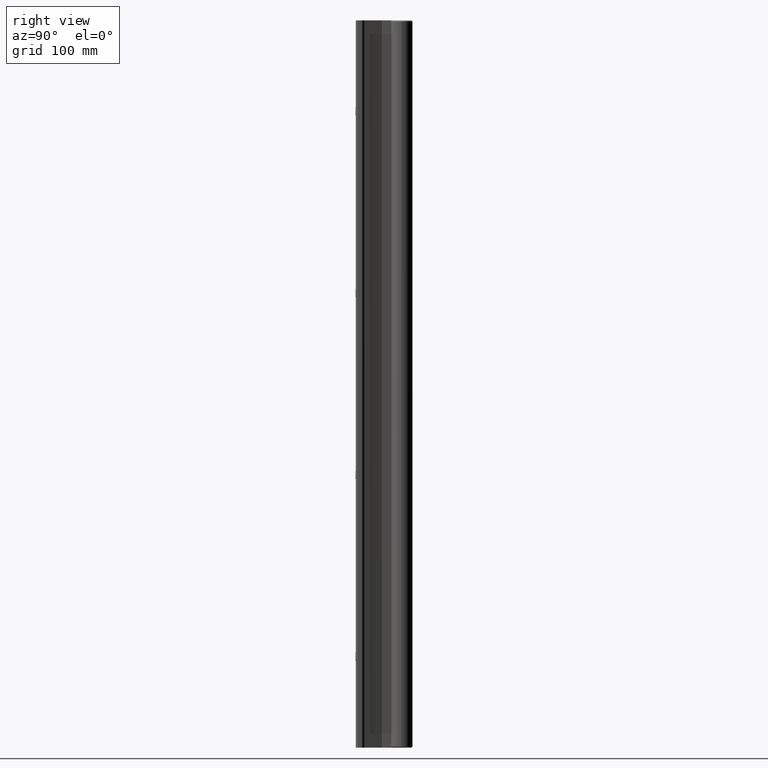
[diagram: clean part render]
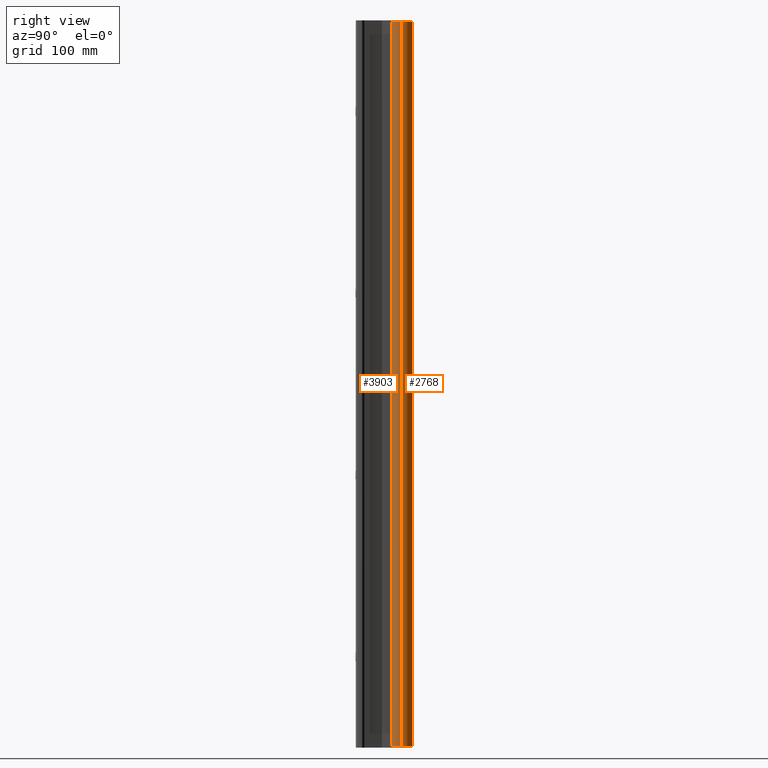
[diagram: same view with one multi-face feature highlighted, each face labeled with its STEP entity id]
A machine part, right view. The highlighted faces form ONE feature: a constant-radius fillet chain: 2 tangent blend faces with common blend radius 9.525 mm. The faces share edges in the B-rep.
Their STEP definitions:
[1] entity #2768 (Cylinder):
#113 = CIRCLE ( 'NONE', #6071, 0.3749999999999999445 ) ;
#130 = VERTEX_POINT ( 'NONE', #1944 ) ;
#192 = EDGE_CURVE ( 'NONE', #4216, #4738, #113, .T. ) ;
#267 = DIRECTION ( 'NONE',  ( 1.000000000000000000, 0.0000000000000000000, 0.0000000000000000000 ) ) ;
#518 = ORIENTED_EDGE ( 'NONE', *, *, #192, .T. ) ;
#651 = AXIS2_PLACEMENT_3D ( 'NONE', #4092, #2659, #1156 ) ;
#703 = VERTEX_POINT ( 'NONE', #5441 ) ;
#920 = EDGE_LOOP ( 'NONE', ( #3879, #5668, #518, #2499 ) ) ;
#1156 = DIRECTION ( 'NONE',  ( 1.000000000000000000, 0.0000000000000000000, 0.0000000000000000000 ) ) ;
#1312 = CARTESIAN_POINT ( 'NONE',  ( 0.3749999999999999445, 1.499999999999999778, -0.03124999999999710648 ) ) ;
#1511 = DIRECTION ( 'NONE',  ( 0.0000000000000000000, 0.0000000000000000000, 1.000000000000000000 ) ) ;
#1524 = DIRECTION ( 'NONE',  ( 0.0000000000000000000, 0.0000000000000000000, -1.000000000000000000 ) ) ;
#1773 = DIRECTION ( 'NONE',  ( 0.0000000000000000000, 0.0000000000000000000, 1.000000000000000000 ) ) ;
#1850 = LINE ( 'NONE', #2195, #6093 ) ;
#1944 = CARTESIAN_POINT ( 'NONE',  ( 0.3749999999999999445, 1.499999999999999778, -23.96875000000000000 ) ) ;
#1952 = AXIS2_PLACEMENT_3D ( 'NONE', #5160, #1773, #267 ) ;
#2195 = CARTESIAN_POINT ( 'NONE',  ( -0.3749999999999999445, 1.499999999999999778, -23.99999999999999645 ) ) ;
#2369 = EDGE_CURVE ( 'NONE', #130, #4738, #4299, .T. ) ;
#2499 = ORIENTED_EDGE ( 'NONE', *, *, #2369, .F. ) ;
#2554 = DIRECTION ( 'NONE',  ( 1.000000000000000000, 0.0000000000000000000, 0.0000000000000000000 ) ) ;
#2659 = DIRECTION ( 'NONE',  ( -0.0000000000000000000, -0.0000000000000000000, 1.000000000000000000 ) ) ;
#2768 = ADVANCED_FACE ( 'NONE', ( #2813 ), #4952, .T. ) ;
#2813 = FACE_OUTER_BOUND ( 'NONE', #920, .T. ) ;
#3210 = DIRECTION ( 'NONE',  ( 0.0000000000000000000, 0.0000000000000000000, 1.000000000000000000 ) ) ;
#3827 = VECTOR ( 'NONE', #1511, 39.37007874015748143 ) ;
#3879 = ORIENTED_EDGE ( 'NONE', *, *, #5931, .T. ) ;
#3931 = CARTESIAN_POINT ( 'NONE',  ( 0.0000000000000000000, 1.499999999999999778, -0.03124999999999710648 ) ) ;
#4092 = CARTESIAN_POINT ( 'NONE',  ( 0.0000000000000000000, 1.499999999999999778, -23.96875000000000000 ) ) ;
#4216 = VERTEX_POINT ( 'NONE', #4594 ) ;
#4299 = LINE ( 'NONE', #4401, #3827 ) ;
#4401 = CARTESIAN_POINT ( 'NONE',  ( 0.3749999999999999445, 1.499999999999999778, -23.99999999999999645 ) ) ;
#4594 = CARTESIAN_POINT ( 'NONE',  ( -0.3749999999999999445, 1.499999999999999778, -0.03124999999999710648 ) ) ;
#4738 = VERTEX_POINT ( 'NONE', #1312 ) ;
#4779 = CIRCLE ( 'NONE', #651, 0.3749999999999999445 ) ;
#4952 = CYLINDRICAL_SURFACE ( 'NONE', #1952, 0.3749999999999999445 ) ;
#5160 = CARTESIAN_POINT ( 'NONE',  ( 0.0000000000000000000, 1.499999999999999778, -23.99999999999999645 ) ) ;
#5354 = EDGE_CURVE ( 'NONE', #703, #4216, #1850, .T. ) ;
#5441 = CARTESIAN_POINT ( 'NONE',  ( -0.3749999999999999445, 1.499999999999999778, -23.96875000000000000 ) ) ;
#5668 = ORIENTED_EDGE ( 'NONE', *, *, #5354, .T. ) ;
#5931 = EDGE_CURVE ( 'NONE', #130, #703, #4779, .T. ) ;
#6071 = AXIS2_PLACEMENT_3D ( 'NONE', #3931, #1524, #2554 ) ;
#6093 = VECTOR ( 'NONE', #3210, 39.37007874015748143 ) ;
[2] entity #3903 (Cylinder):
#17 = CARTESIAN_POINT ( 'NONE',  ( -0.008199185978417126291, 1.124999999999999778, -20.87500000000000000 ) ) ;
#39 = CARTESIAN_POINT ( 'NONE',  ( -0.05552849340515757237, 1.129056354555276975, -20.88771445111031255 ) ) ;
#62 = DIRECTION ( 'NONE',  ( -0.0000000000000000000, -0.0000000000000000000, 1.000000000000000000 ) ) ;
#93 = CARTESIAN_POINT ( 'NONE',  ( -0.1185237875825029819, 1.144208060990028475, -21.04053697796969402 ) ) ;
#107 = CARTESIAN_POINT ( 'NONE',  ( -0.04052925131259992736, 1.127118722568794640, -9.118530216658257359 ) ) ;
#115 = CARTESIAN_POINT ( 'NONE',  ( -0.04052925131259926816, 1.127118722568794418, -21.11853021665825736 ) ) ;
#118 = CARTESIAN_POINT ( 'NONE',  ( 0.07629384564802829671, 1.132778678738117328, -9.099349498394039060 ) ) ;
#130 = VERTEX_POINT ( 'NONE', #1944 ) ;
#133 = CARTESIAN_POINT ( 'NONE',  ( -0.1209544131638265879, 1.145038121379762908, -8.967407062744349844 ) ) ;
#161 = CARTESIAN_POINT ( 'NONE',  ( -0.01649604049918379153, 1.125276581205358672, -9.124177072946856981 ) ) ;
#199 = CARTESIAN_POINT ( 'NONE',  ( -0.07635022463610424692, 1.132790423690561044, -8.900693733610289371 ) ) ;
#222 = CARTESIAN_POINT ( 'NONE',  ( -0.08260014785982905394, 1.134162219015206530, -8.905827788982144000 ) ) ;
#252 = CARTESIAN_POINT ( 'NONE',  ( 0.07637577337513082321, 1.132795830430083139, -2.900713745801356769 ) ) ;
#281 = CARTESIAN_POINT ( 'NONE',  ( 0.1083932797339005188, 1.140975780241187065, -21.06279253465905299 ) ) ;
#296 = CARTESIAN_POINT ( 'NONE',  ( -0.1249959074323481467, 1.146445162465756340, -3.008282252000103796 ) ) ;
#301 = CARTESIAN_POINT ( 'NONE',  ( 0.1209654137732490975, 1.145041858245552602, -21.03256067885499547 ) ) ;
#307 = CARTESIAN_POINT ( 'NONE',  ( -0.1209544131638268516, 1.145038121379763352, -14.96740706274434629 ) ) ;
#314 = CARTESIAN_POINT ( 'NONE',  ( -0.09933638728234459037, 1.138365720413012427, -2.923690985503739181 ) ) ;
#320 = CARTESIAN_POINT ( 'NONE',  ( 0.008321157592743298054, 1.124999999999999778, -21.12499999999999645 ) ) ;
#326 = CARTESIAN_POINT ( 'NONE',  ( -0.05564380897423314154, 1.129073007461675049, -15.11223100728342317 ) ) ;
#331 = CARTESIAN_POINT ( 'NONE',  ( -0.05564380897423287786, 1.129073007461675049, -3.112231007283425388 ) ) ;
#355 = CARTESIAN_POINT ( 'NONE',  ( -0.008323276755297724649, 1.124999999999999778, -3.124999999999999112 ) ) ;
#368 = CARTESIAN_POINT ( 'NONE',  ( -0.08270888014692263923, 1.134187380241394205, -15.09407290499850696 ) ) ;
#404 = CARTESIAN_POINT ( 'NONE',  ( 6.354236240045021498E-17, 1.124999999999999778, -3.124999999999999556 ) ) ;
#421 = CARTESIAN_POINT ( 'NONE',  ( 0.04052490638182626448, 1.127118274301449841, -3.118531605065489209 ) ) ;
#457 = EDGE_LOOP ( 'NONE', ( #462, #3177 ) ) ;
#462 = ORIENTED_EDGE ( 'NONE', *, *, #3356, .T. ) ;
#470 = CARTESIAN_POINT ( 'NONE',  ( 0.03266774632321109428, 1.126337263159386426, -14.87906118326279525 ) ) ;
#486 = CARTESIAN_POINT ( 'NONE',  ( 0.07629384564802833835, 1.132778678738117328, -15.09934949839404261 ) ) ;
#509 = CARTESIAN_POINT ( 'NONE',  ( -0.1249959074323481328, 1.146445162465756340, -21.00828225200010024 ) ) ;
#511 = CARTESIAN_POINT ( 'NONE',  ( 0.1185730390998946948, 1.144224147783138745, -14.95958850644446692 ) ) ;
#536 = CARTESIAN_POINT ( 'NONE',  ( 0.08263376477293288280, 1.134169548060881549, -14.90585498830494160 ) ) ;
#537 = CARTESIAN_POINT ( 'NONE',  ( 0.03255240335413719238, 1.126328932588529730, -9.120964333197060014 ) ) ;
#562 = CARTESIAN_POINT ( 'NONE',  ( -0.1122437319770848707, 1.142176852049964220, -20.94437454415956523 ) ) ;
#564 = CARTESIAN_POINT ( 'NONE',  ( 0.01649640680358238978, 1.125276643179092817, -9.124176879621410663 ) ) ;
#586 = CARTESIAN_POINT ( 'NONE',  ( 0.04052490638182602856, 1.127118274301449841, -9.118531605065490098 ) ) ;
#609 = CARTESIAN_POINT ( 'NONE',  ( -0.1250040618164579287, 1.146448045475507937, -20.99184174636232214 ) ) ;
#694 = CARTESIAN_POINT ( 'NONE',  ( -0.05552849340515732951, 1.129056354555276975, -8.887714451110316105 ) ) ;
#703 = VERTEX_POINT ( 'NONE', #5441 ) ;
#719 = CARTESIAN_POINT ( 'NONE',  ( 0.008197098410217915077, 1.125000000000000222, -8.874999999999998224 ) ) ;
#733 = CARTESIAN_POINT ( 'NONE',  ( 2.097213048189285219E-15, 1.124999999999999778, -8.874999999999998224 ) ) ;
#741 = CARTESIAN_POINT ( 'NONE',  ( 0.1185730390998943201, 1.144224147783138745, -2.959588506444464251 ) ) ;
#757 = CARTESIAN_POINT ( 'NONE',  ( 0.1250009802955068805, 1.146446955993523309, -20.99177801048903902 ) ) ;
#773 = CARTESIAN_POINT ( 'NONE',  ( 2.097213048189285219E-15, 1.124999999999999778, -8.874999999999998224 ) ) ;
#792 = CARTESIAN_POINT ( 'NONE',  ( -0.1185723957054426320, 1.144223880012038119, -2.959584239679654782 ) ) ;
#794 = CARTESIAN_POINT ( 'NONE',  ( 0.08267656770183443027, 1.134179936560775648, -21.09410215216271212 ) ) ;
#798 = CARTESIAN_POINT ( 'NONE',  ( 0.03266774632321121918, 1.126337263159386426, -2.879061183262796586 ) ) ;
#808 = CARTESIAN_POINT ( 'NONE',  ( -0.08260014785982948415, 1.134162219015206974, -2.905827788982146664 ) ) ;
#822 = CARTESIAN_POINT ( 'NONE',  ( -0.03255629333503190503, 1.126329225507829879, -15.12096343481433536 ) ) ;
#842 = CARTESIAN_POINT ( 'NONE',  ( -0.09411010042740793058, 1.136952681569073809, -14.91732909367860849 ) ) ;
#871 = CARTESIAN_POINT ( 'NONE',  ( 0.05563716654445831356, 1.129072035165736176, -3.112234197709794259 ) ) ;
#913 = CARTESIAN_POINT ( 'NONE',  ( 0.008321157592743225195, 1.124999999999999778, -3.125000000000000888 ) ) ;
#945 = VERTEX_POINT ( 'NONE', #2356 ) ;
#972 = CARTESIAN_POINT ( 'NONE',  ( 0.05556862442868314850, 1.129062064057325454, -14.88773311215387807 ) ) ;
#991 = CARTESIAN_POINT ( 'NONE',  ( 0.06287984198914917111, 1.130245640486009728, -14.89166189727124490 ) ) ;
#1009 = CARTESIAN_POINT ( 'NONE',  ( -0.03267150337677446337, 1.126337925261777784, -20.87906325004080088 ) ) ;
#1034 = CYLINDRICAL_SURFACE ( 'NONE', #4335, 0.3749999999999999445 ) ;
#1065 = CARTESIAN_POINT ( 'NONE',  ( -0.05564380897423196193, 1.129073007461675049, -21.11223100728342317 ) ) ;
#1067 = CARTESIAN_POINT ( 'NONE',  ( 0.008321157592743280706, 1.124999999999999778, -9.125000000000000000 ) ) ;
#1074 = CARTESIAN_POINT ( 'NONE',  ( 6.264928769732560272E-17, 1.124999999999999778, -15.12499999999999822 ) ) ;
#1079 = CARTESIAN_POINT ( 'NONE',  ( -0.09986561048412578856, 1.138350464728789202, -9.076900852288481758 ) ) ;
#1088 = CARTESIAN_POINT ( 'NONE',  ( -0.1083646537625423956, 1.140967728712819262, -20.93716780008130485 ) ) ;
#1127 = CARTESIAN_POINT ( 'NONE',  ( -0.07634699348806610331, 1.132789384939130839, -9.099310559574416146 ) ) ;
#1192 = CARTESIAN_POINT ( 'NONE',  ( 0.1185730390998943617, 1.144224147783138745, -8.959588506444465139 ) ) ;
#1199 = EDGE_CURVE ( 'NONE', #3712, #3309, #5207, .T. ) ;
#1216 = CARTESIAN_POINT ( 'NONE',  ( 0.08263376477293436773, 1.134169548060882216, -20.90585498830494515 ) ) ;
#1219 = CARTESIAN_POINT ( 'NONE',  ( 0.1241678343262123674, 1.146149400175753064, -2.983438654594587014 ) ) ;
#1233 = CARTESIAN_POINT ( 'NONE',  ( 0.09927870683307976618, 1.138349295819228946, -21.07639204061896976 ) ) ;
#1244 = CARTESIAN_POINT ( 'NONE',  ( -0.03255629333503186340, 1.126329225507829657, -3.120963434814338022 ) ) ;
#1248 = CARTESIAN_POINT ( 'NONE',  ( 0.09413140612909383365, 1.136958663453052853, -21.08264325906429804 ) ) ;
#1252 = CARTESIAN_POINT ( 'NONE',  ( 0.008197098410217954975, 1.125000000000000222, -2.874999999999999112 ) ) ;
#1267 = CARTESIAN_POINT ( 'NONE',  ( -0.09986561048412598285, 1.138350464728788758, -3.076900852288477761 ) ) ;
#1282 = CARTESIAN_POINT ( 'NONE',  ( -0.1241888673462582526, 1.146156742583905874, -15.01643345193981638 ) ) ;
#1288 = CARTESIAN_POINT ( 'NONE',  ( -0.07635022463610419141, 1.132790423690561266, -2.900693733610288483 ) ) ;
#1290 = CARTESIAN_POINT ( 'NONE',  ( 0.04052490638182691673, 1.127118274301450285, -21.11853160506548832 ) ) ;
#1297 = CARTESIAN_POINT ( 'NONE',  ( -0.008199185978417187007, 1.124999999999999778, -14.87500000000000178 ) ) ;
#1311 = CARTESIAN_POINT ( 'NONE',  ( 0.06278460617192940796, 1.130229337425312064, -3.108393574268719206 ) ) ;
#1312 = CARTESIAN_POINT ( 'NONE',  ( 0.3749999999999999445, 1.499999999999999778, -0.03124999999999710648 ) ) ;
#1330 = CARTESIAN_POINT ( 'NONE',  ( 6.354236240045021498E-17, 1.124999999999999778, -3.124999999999999556 ) ) ;
#1343 = EDGE_CURVE ( 'NONE', #3309, #3712, #5247, .T. ) ;
#1373 = CARTESIAN_POINT ( 'NONE',  ( 0.1122679117759137896, 1.142184748809113692, -3.055563895318961443 ) ) ;
#1409 = CARTESIAN_POINT ( 'NONE',  ( 0.09927870683307861432, 1.138349295819229168, -9.076392040618980417 ) ) ;
#1413 = DIRECTION ( 'NONE',  ( 0.0000000000000000000, 0.0000000000000000000, 1.000000000000000000 ) ) ;
#1461 = CARTESIAN_POINT ( 'NONE',  ( 0.04048540440161966375, 1.127114285105013103, -14.88145609185627194 ) ) ;
#1485 = CARTESIAN_POINT ( 'NONE',  ( 0.1249990179307815114, 1.146446262192827081, -15.00825176967056862 ) ) ;
#1511 = DIRECTION ( 'NONE',  ( 0.0000000000000000000, 0.0000000000000000000, 1.000000000000000000 ) ) ;
#1572 = CARTESIAN_POINT ( 'NONE',  ( -0.1250040618164579009, 1.146448045475507271, -8.991841746362331023 ) ) ;
#1615 = CARTESIAN_POINT ( 'NONE',  ( -0.1241761983711994755, 1.146152325010479034, -8.983491172639070044 ) ) ;
#1620 = CARTESIAN_POINT ( 'NONE',  ( 0.08263376477293328526, 1.134169548060881993, -8.905854988304941600 ) ) ;
#1693 = ORIENTED_EDGE ( 'NONE', *, *, #1918, .T. ) ;
#1755 = CARTESIAN_POINT ( 'NONE',  ( 0.06278460617193117044, 1.130229337425312286, -21.10839357426871032 ) ) ;
#1784 = CARTESIAN_POINT ( 'NONE',  ( -0.04047420807541089738, 1.127113368225226564, -2.881453399247499991 ) ) ;
#1796 = CARTESIAN_POINT ( 'NONE',  ( -0.1250040618164579287, 1.146448045475507715, -14.99184174636233458 ) ) ;
#1830 = ORIENTED_EDGE ( 'NONE', *, *, #1199, .T. ) ;
#1834 = CARTESIAN_POINT ( 'NONE',  ( -0.09986561048412580244, 1.138350464728788980, -15.07690085228847465 ) ) ;
#1850 = LINE ( 'NONE', #2195, #6093 ) ;
#1866 = CARTESIAN_POINT ( 'NONE',  ( 0.1083932797338998250, 1.140975780241186843, -3.062792534659057875 ) ) ;
#1892 = CARTESIAN_POINT ( 'NONE',  ( 0.01645178346242884629, 1.125272950837598707, -14.87581176438752983 ) ) ;
#1893 = ORIENTED_EDGE ( 'NONE', *, *, #1343, .T. ) ;
#1918 = EDGE_CURVE ( 'NONE', #2142, #4277, #2785, .T. ) ;
#1941 = DIRECTION ( 'NONE',  ( 0.0000000000000000000, 0.0000000000000000000, -1.000000000000000000 ) ) ;
#1944 = CARTESIAN_POINT ( 'NONE',  ( 0.3749999999999999445, 1.499999999999999778, -23.96875000000000000 ) ) ;
#1947 = B_SPLINE_CURVE_WITH_KNOTS ( 'NONE', 3,
 ( #2294, #355, #5154, #1244, #5655, #331, #4675, #2729, #2782, #1267, #4694, #5714, #3217, #2747, #296, #4225, #2253, #3699, #792, #6188, #3234, #314, #3725, #808, #1288, #4243, #4717, #1784, #6226, #5205, #2281, #6208 ),
 .UNSPECIFIED., .F., .F.,
 ( 4, 2, 2, 2, 2, 2, 2, 2, 2, 2, 2, 2, 2, 2, 2, 4 ),
 ( 1.566876027423624901E-18, 0.0006249108828500791806, 0.001249821765700156843, 0.001874732648550234398, 0.002499643531400312386, 0.003749465297100469229, 0.004374376179950528569, 0.004999287062800588342, 0.005624197945650648983, 0.006249108828500708757, 0.006874019711350768530, 0.007498930594200827436, 0.008123841477050888077, 0.008748752359900947850, 0.009373663242751009358, 0.009998574125601069132 ),
 .UNSPECIFIED. ) ;
#1961 = CARTESIAN_POINT ( 'NONE',  ( 0.04052490638182574406, 1.127118274301449619, -15.11853160506549187 ) ) ;
#1983 = CARTESIAN_POINT ( 'NONE',  ( -0.01649604049918402399, 1.125276581205358672, -21.12417707294684988 ) ) ;
#1985 = CARTESIAN_POINT ( 'NONE',  ( 0.01649640680358280959, 1.125276643179093039, -15.12417687962141599 ) ) ;
#2006 = CARTESIAN_POINT ( 'NONE',  ( -0.1241761983711991701, 1.146152325010478812, -20.98349117263906294 ) ) ;
#2007 = CARTESIAN_POINT ( 'NONE',  ( 0.1241678343262123951, 1.146149400175752620, -14.98343865459458790 ) ) ;
#2009 = CARTESIAN_POINT ( 'NONE',  ( 0.06278460617192910265, 1.130229337425312064, -9.108393574268717430 ) ) ;
#2031 = CARTESIAN_POINT ( 'NONE',  ( 0.08267656770183509640, 1.134179936560775648, -9.094102152162705011 ) ) ;
#2042 = CARTESIAN_POINT ( 'NONE',  ( -8.374947378705658195E-17, 1.124999999999999778, -9.125000000000000000 ) ) ;
#2055 = CARTESIAN_POINT ( 'NONE',  ( -0.1241888673462583775, 1.146156742583905430, -21.01643345193981460 ) ) ;
#2067 = EDGE_CURVE ( 'NONE', #4277, #2142, #3729, .T. ) ;
#2071 = CARTESIAN_POINT ( 'NONE',  ( -0.03255629333503181483, 1.126329225507830323, -9.120963434814337134 ) ) ;
#2080 = CARTESIAN_POINT ( 'NONE',  ( -0.08260014785982891516, 1.134162219015206530, -20.90582778898214755 ) ) ;
#2110 = ORIENTED_EDGE ( 'NONE', *, *, #5354, .F. ) ;
#2126 = CARTESIAN_POINT ( 'NONE',  ( 0.1250009802955067695, 1.146446955993523531, -8.991778010489039019 ) ) ;
#2142 = VERTEX_POINT ( 'NONE', #6273 ) ;
#2144 = CARTESIAN_POINT ( 'NONE',  ( -0.06284423705968493479, 1.130239494261857214, -8.891640906174727021 ) ) ;
#2159 = CARTESIAN_POINT ( 'NONE',  ( -0.03267150337677333927, 1.126337925261777562, -8.879063250040800881 ) ) ;
#2164 = CARTESIAN_POINT ( 'NONE',  ( 0.09994538311842349199, 1.138369034816674397, -8.923172858807872032 ) ) ;
#2180 = CARTESIAN_POINT ( 'NONE',  ( 0.1209500571403314823, 1.145036647307089428, -8.967396121079699967 ) ) ;
#2189 = CARTESIAN_POINT ( 'NONE',  ( 0.06287984198914980949, 1.130245640486009506, -2.891661897271242676 ) ) ;
#2191 = CIRCLE ( 'NONE', #3055, 0.3749999999999999445 ) ;
#2195 = CARTESIAN_POINT ( 'NONE',  ( -0.3749999999999999445, 1.499999999999999778, -23.99999999999999645 ) ) ;
#2205 = CARTESIAN_POINT ( 'NONE',  ( 0.1241918054842636593, 1.146157790565254020, -9.016408064705826675 ) ) ;
#2207 = CARTESIAN_POINT ( 'NONE',  ( 0.1241678343262124090, 1.146149400175752620, -20.98343865459457191 ) ) ;
#2225 = CARTESIAN_POINT ( 'NONE',  ( 0.04048540440161906007, 1.127114285105013325, -20.88145609185627194 ) ) ;
#2247 = CARTESIAN_POINT ( 'NONE',  ( -0.008323276755297677812, 1.125000000000000000, -15.12500000000000000 ) ) ;
#2253 = CARTESIAN_POINT ( 'NONE',  ( -0.1241761983711994893, 1.146152325010478812, -2.983491172639069600 ) ) ;
#2259 = CARTESIAN_POINT ( 'NONE',  ( 0.07629384564803012858, 1.132778678738117772, -21.09934949839404084 ) ) ;
#2267 = CARTESIAN_POINT ( 'NONE',  ( 0.04048540440161958048, 1.127114285105012881, -2.881456091856274604 ) ) ;
#2275 = CARTESIAN_POINT ( 'NONE',  ( -0.04052925131260023961, 1.127118722568794640, -15.11853021665826091 ) ) ;
#2281 = CARTESIAN_POINT ( 'NONE',  ( -0.008199185978417157517, 1.125000000000000000, -2.875000000000000000 ) ) ;
#2291 = CARTESIAN_POINT ( 'NONE',  ( -0.01649604049918387480, 1.125276581205358895, -15.12417707294685343 ) ) ;
#2294 = CARTESIAN_POINT ( 'NONE',  ( 6.354236240045021498E-17, 1.124999999999999778, -3.124999999999999556 ) ) ;
#2303 = CARTESIAN_POINT ( 'NONE',  ( 0.1209654137732474183, 1.145041858245552158, -3.032560678855006575 ) ) ;
#2356 = CARTESIAN_POINT ( 'NONE',  ( 2.097213048187297684E-15, 1.124999999999999778, -2.875000000000000000 ) ) ;
#2369 = EDGE_CURVE ( 'NONE', #130, #4738, #4299, .T. ) ;
#2411 = FACE_BOUND ( 'NONE', #4766, .T. ) ;
#2436 = CARTESIAN_POINT ( 'NONE',  ( 0.1090963977429631609, 1.141158716857180844, -14.93680511373058195 ) ) ;
#2452 = CARTESIAN_POINT ( 'NONE',  ( -0.06284423705968371354, 1.130239494261856770, -20.89164090617472169 ) ) ;
#2454 = CARTESIAN_POINT ( 'NONE',  ( 6.264928769732560272E-17, 1.124999999999999778, -15.12499999999999822 ) ) ;
#2469 = CARTESIAN_POINT ( 'NONE',  ( -0.09933638728234434057, 1.138365720413012205, -20.92369098550372897 ) ) ;
#2471 = CARTESIAN_POINT ( 'NONE',  ( 0.1122679117759138590, 1.142184748809114136, -15.05556389531895611 ) ) ;
#2476 = CARTESIAN_POINT ( 'NONE',  ( 0.1083932797338995196, 1.140975780241187065, -9.062792534659058319 ) ) ;
#2484 = B_SPLINE_CURVE_WITH_KNOTS ( 'NONE', 3,
 ( #4687, #2247, #2291, #822, #2275, #326, #6203, #5686, #368, #1834, #3691, #4732, #3247, #1282, #5707, #1796, #5669, #307, #5264, #3774, #6163, #2759, #842, #3738, #6181, #2742, #2801, #3718, #4236, #3211, #1297, #2774 ),
 .UNSPECIFIED., .F., .F.,
 ( 4, 2, 2, 2, 2, 2, 2, 2, 2, 2, 2, 2, 2, 2, 2, 4 ),
 ( 1.544853910364066370E-18, 0.0006249108828501105141, 0.001249821765700219510, 0.001874732648550328507, 0.002499643531400437720, 0.003749465297100539919, 0.004374376179950591886, 0.004999287062800642986, 0.005624197945650694953, 0.006249108828500747788, 0.006874019711350799755, 0.007498930594200852590, 0.008123841477050903689, 0.008748752359900956524, 0.009373663242751009358, 0.009998574125601062193 ),
 .UNSPECIFIED. ) ;
#2517 = CARTESIAN_POINT ( 'NONE',  ( 0.0000000000000000000, 1.499999999999999778, -23.96875000000000000 ) ) ;
#2630 = CARTESIAN_POINT ( 'NONE',  ( -0.01648624209988766923, 1.125274797949223249, -8.875817358519734412 ) ) ;
#2649 = CARTESIAN_POINT ( 'NONE',  ( -0.09411010042740713955, 1.136952681569073809, -8.917329093678610263 ) ) ;
#2729 = CARTESIAN_POINT ( 'NONE',  ( -0.07634699348806622821, 1.132789384939130173, -3.099310559574415702 ) ) ;
#2735 = CARTESIAN_POINT ( 'NONE',  ( 2.097213048189285219E-15, 1.124999999999999778, -20.87499999999999289 ) ) ;
#2742 = CARTESIAN_POINT ( 'NONE',  ( -0.06284423705968536500, 1.130239494261857214, -14.89164090617473235 ) ) ;
#2747 = CARTESIAN_POINT ( 'NONE',  ( -0.1241888673462583081, 1.146156742583905874, -3.016433451939814603 ) ) ;
#2756 = CARTESIAN_POINT ( 'NONE',  ( 0.05556862442868306523, 1.129062064057325010, -2.887733112153873183 ) ) ;
#2759 = CARTESIAN_POINT ( 'NONE',  ( -0.09933638728234468751, 1.138365720413012205, -14.92369098550373963 ) ) ;
#2774 = CARTESIAN_POINT ( 'NONE',  ( 2.097213048187297684E-15, 1.124999999999999778, -14.87499999999999822 ) ) ;
#2782 = CARTESIAN_POINT ( 'NONE',  ( -0.08270888014692280577, 1.134187380241394205, -3.094072904998501627 ) ) ;
#2785 = B_SPLINE_CURVE_WITH_KNOTS ( 'NONE', 3,
 ( #4023, #3973, #1983, #4959, #115, #1065, #5951, #4495, #3998, #4448, #3515, #93, #4979, #2055, #509, #609, #2006, #5932, #5414, #562, #1088, #2469, #4513, #2080, #2972, #2452, #39, #2993, #1009, #5891, #17, #3424 ),
 .UNSPECIFIED., .F., .F.,
 ( 4, 2, 2, 2, 2, 2, 2, 2, 2, 2, 2, 2, 2, 2, 2, 4 ),
 ( 2.166493291249464291E-17, 0.0006249108828499984076, 0.001249821765699975131, 0.001874732648549952072, 0.002499643531399928578, 0.003749465297100115779, 0.004374376179950210247, 0.004999287062800303848, 0.005624197945650399183, 0.006249108828500492784, 0.006874019711350587251, 0.007498930594200681719, 0.008123841477050775320, 0.008748752359900869788, 0.009373663242750964256, 0.009998574125601058724 ),
 .UNSPECIFIED. ) ;
#2794 = CARTESIAN_POINT ( 'NONE',  ( 0.03255240335413747688, 1.126328932588529730, -3.120964333197061347 ) ) ;
#2801 = CARTESIAN_POINT ( 'NONE',  ( -0.05552849340515821769, 1.129056354555276753, -14.88771445111031433 ) ) ;
#2808 = EDGE_CURVE ( 'NONE', #945, #5690, #3907, .T. ) ;
#2810 = ORIENTED_EDGE ( 'NONE', *, *, #2067, .T. ) ;
#2838 = CARTESIAN_POINT ( 'NONE',  ( 0.08267656770183459680, 1.134179936560775648, -3.094102152162706343 ) ) ;
#2858 = CARTESIAN_POINT ( 'NONE',  ( 0.1249990179307815669, 1.146446262192826637, -3.008251769670571285 ) ) ;
#2923 = CARTESIAN_POINT ( 'NONE',  ( 0.1209654137732471824, 1.145041858245551714, -15.03256067885500613 ) ) ;
#2946 = ORIENTED_EDGE ( 'NONE', *, *, #6333, .T. ) ;
#2947 = CARTESIAN_POINT ( 'NONE',  ( 0.08267656770183405557, 1.134179936560775870, -15.09410215216271034 ) ) ;
#2972 = CARTESIAN_POINT ( 'NONE',  ( -0.07635022463610330323, 1.132790423690560822, -20.90069373361028227 ) ) ;
#2993 = CARTESIAN_POINT ( 'NONE',  ( -0.04047420807541100146, 1.127113368225226564, -20.88145339924749422 ) ) ;
#3025 = EDGE_LOOP ( 'NONE', ( #2110, #2946, #5243, #4058 ) ) ;
#3051 = CARTESIAN_POINT ( 'NONE',  ( -0.1209558938445397247, 1.145038597399876013, -9.032597620460290244 ) ) ;
#3055 = AXIS2_PLACEMENT_3D ( 'NONE', #2517, #62, #5997 ) ;
#3074 = CARTESIAN_POINT ( 'NONE',  ( -0.008323276755297761079, 1.125000000000000000, -9.125000000000000000 ) ) ;
#3118 = CARTESIAN_POINT ( 'NONE',  ( -0.1185723957054424654, 1.144223880012038119, -8.959584239679655226 ) ) ;
#3139 = CARTESIAN_POINT ( 'NONE',  ( -0.09933638728234467363, 1.138365720413012649, -8.923690985503739626 ) ) ;
#3142 = CARTESIAN_POINT ( 'NONE',  ( 0.05556862442868313462, 1.129062064057325010, -8.887733112153872739 ) ) ;
#3177 = ORIENTED_EDGE ( 'NONE', *, *, #2808, .T. ) ;
#3187 = CARTESIAN_POINT ( 'NONE',  ( 0.01645178346242872139, 1.125272950837598707, -20.87581176438753161 ) ) ;
#3189 = FACE_BOUND ( 'NONE', #457, .T. ) ;
#3206 = CARTESIAN_POINT ( 'NONE',  ( 0.1241918054842642838, 1.146157790565254464, -21.01640806470581424 ) ) ;
#3208 = CARTESIAN_POINT ( 'NONE',  ( 0.01645178346242905446, 1.125272950837599151, -2.875811764387531611 ) ) ;
#3210 = DIRECTION ( 'NONE',  ( 0.0000000000000000000, 0.0000000000000000000, 1.000000000000000000 ) ) ;
#3211 = CARTESIAN_POINT ( 'NONE',  ( -0.01648624209988779413, 1.125274797949223249, -14.87581735851973086 ) ) ;
#3217 = CARTESIAN_POINT ( 'NONE',  ( -0.1209558938445397108, 1.145038597399876013, -3.032597620460292021 ) ) ;
#3223 = CARTESIAN_POINT ( 'NONE',  ( 0.05556862442868262808, 1.129062064057324566, -20.88773311215387452 ) ) ;
#3234 = CARTESIAN_POINT ( 'NONE',  ( -0.1083646537625426315, 1.140967728712819262, -2.937167800081305735 ) ) ;
#3238 = CARTESIAN_POINT ( 'NONE',  ( 0.01649640680358361797, 1.125276643179092817, -21.12417687962141244 ) ) ;
#3242 = CARTESIAN_POINT ( 'NONE',  ( 0.09994538311842336709, 1.138369034816674397, -2.923172858807872920 ) ) ;
#3247 = CARTESIAN_POINT ( 'NONE',  ( -0.1209558938445397802, 1.145038597399875790, -15.03259762046029202 ) ) ;
#3282 = CARTESIAN_POINT ( 'NONE',  ( 0.1185326186922871922, 1.144210938468774419, -3.040514797093034627 ) ) ;
#3309 = VERTEX_POINT ( 'NONE', #773 ) ;
#3334 = CARTESIAN_POINT ( 'NONE',  ( 0.1209654137732475571, 1.145041858245552158, -9.032560678855006131 ) ) ;
#3356 = EDGE_CURVE ( 'NONE', #5690, #945, #1947, .T. ) ;
#3405 = CARTESIAN_POINT ( 'NONE',  ( 0.1250009802955067140, 1.146446955993523531, -14.99177801048903547 ) ) ;
#3424 = CARTESIAN_POINT ( 'NONE',  ( 2.097213048189285219E-15, 1.124999999999999778, -20.87499999999999289 ) ) ;
#3432 = VERTEX_POINT ( 'NONE', #4348 ) ;
#3445 = CARTESIAN_POINT ( 'NONE',  ( 0.008321157592743150602, 1.124999999999999556, -15.12499999999999645 ) ) ;
#3509 = CARTESIAN_POINT ( 'NONE',  ( -0.05564380897423275296, 1.129073007461675493, -9.112231007283426720 ) ) ;
#3515 = CARTESIAN_POINT ( 'NONE',  ( -0.1091466335872150334, 1.141175278546628924, -21.06305990485126145 ) ) ;
#3529 = CARTESIAN_POINT ( 'NONE',  ( -0.1241888673462582665, 1.146156742583905430, -9.016433451939814603 ) ) ;
#3554 = EDGE_LOOP ( 'NONE', ( #1830, #1893 ) ) ;
#3571 = EDGE_CURVE ( 'NONE', #4738, #4216, #4410, .T. ) ;
#3600 = CARTESIAN_POINT ( 'NONE',  ( -0.1122437319770857866, 1.142176852049964664, -8.944374544159565232 ) ) ;
#3642 = CARTESIAN_POINT ( 'NONE',  ( 0.1249990179307815252, 1.146446262192826637, -9.008251769670570397 ) ) ;
#3663 = CARTESIAN_POINT ( 'NONE',  ( 0.09994538311842438016, 1.138369034816674619, -20.92317285880787026 ) ) ;
#3691 = CARTESIAN_POINT ( 'NONE',  ( -0.1091466335872150195, 1.141175278546628480, -15.06305990485126145 ) ) ;
#3694 = EDGE_LOOP ( 'NONE', ( #1693, #2810 ) ) ;
#3699 = CARTESIAN_POINT ( 'NONE',  ( -0.1209544131638264214, 1.145038121379762908, -2.967407062744348512 ) ) ;
#3705 = CARTESIAN_POINT ( 'NONE',  ( 0.1185326186922886771, 1.144210938468775085, -21.04051479709303152 ) ) ;
#3708 = FACE_BOUND ( 'NONE', #3554, .T. ) ;
#3712 = VERTEX_POINT ( 'NONE', #2042 ) ;
#3718 = CARTESIAN_POINT ( 'NONE',  ( -0.04047420807541153576, 1.127113368225226564, -14.88145339924749067 ) ) ;
#3720 = VERTEX_POINT ( 'NONE', #1074 ) ;
#3725 = CARTESIAN_POINT ( 'NONE',  ( -0.09411010042740750037, 1.136952681569073587, -2.917329093678609819 ) ) ;
#3729 = B_SPLINE_CURVE_WITH_KNOTS ( 'NONE', 3,
 ( #2735, #5197, #3187, #6172, #2225, #3223, #6134, #5661, #1216, #3663, #4156, #5136, #4198, #2207, #757, #4176, #3206, #301, #3705, #4723, #281, #1233, #1248, #794, #2259, #1755, #6193, #1290, #5699, #3238, #320, #3733 ),
 .UNSPECIFIED., .F., .F.,
 ( 4, 2, 2, 2, 2, 2, 2, 2, 2, 2, 2, 2, 2, 2, 2, 4 ),
 ( 0.009998574125601058724, 0.01062332590191381043, 0.01124807767822656387, 0.01187282945453931558, 0.01249758123085206729, 0.01374708478347757071, 0.01437183655979047681, 0.01499658833610337944, 0.01562134011241628553, 0.01624609188872918816, 0.01687084366504209426, 0.01749559544135499689, 0.01812034721766789952, 0.01874509899398080562, 0.01936985077029371172, 0.01999460254660661435 ),
 .UNSPECIFIED. ) ;
#3733 = CARTESIAN_POINT ( 'NONE',  ( 8.785896231821153172E-16, 1.124999999999999778, -21.12499999999999645 ) ) ;
#3735 = CARTESIAN_POINT ( 'NONE',  ( 0.1090963977429626336, 1.141158716857180844, -2.936805113730584171 ) ) ;
#3738 = CARTESIAN_POINT ( 'NONE',  ( -0.08260014785982991437, 1.134162219015206974, -14.90582778898214755 ) ) ;
#3774 = CARTESIAN_POINT ( 'NONE',  ( -0.1122437319770857589, 1.142176852049964220, -14.94437454415956523 ) ) ;
#3793 = CARTESIAN_POINT ( 'NONE',  ( 0.09927870683307894739, 1.138349295819229168, -3.076392040618979529 ) ) ;
#3827 = VECTOR ( 'NONE', #1511, 39.37007874015748143 ) ;
#3829 = CARTESIAN_POINT ( 'NONE',  ( 0.09413140612909398630, 1.136958663453052853, -3.082643259064298480 ) ) ;
#3833 = CARTESIAN_POINT ( 'NONE',  ( 0.008197098410217979261, 1.125000000000000222, -14.87499999999999645 ) ) ;
#3885 = ORIENTED_EDGE ( 'NONE', *, *, #4736, .T. ) ;
#3896 = CARTESIAN_POINT ( 'NONE',  ( 0.06278460617192903326, 1.130229337425311620, -15.10839357426871921 ) ) ;
#3903 = ADVANCED_FACE ( 'NONE', ( #4562, #3189, #3708, #2411, #4941 ), #1034, .T. ) ;
#3907 = B_SPLINE_CURVE_WITH_KNOTS ( 'NONE', 3,
 ( #4644, #1252, #3208, #798, #2267, #2756, #2189, #252, #6199, #3242, #3735, #741, #4159, #1219, #5213, #2858, #4333, #2303, #3282, #1373, #1866, #3793, #3829, #2838, #5777, #1311, #871, #421, #2794, #5279, #913, #1330 ),
 .UNSPECIFIED., .F., .F.,
 ( 4, 2, 2, 2, 2, 2, 2, 2, 2, 2, 2, 2, 2, 2, 2, 4 ),
 ( 0.009998574125601069132, 0.01062332590191391798, 0.01124807767822676684, 0.01187282945453961569, 0.01249758123085246454, 0.01374708478347816398, 0.01437183655979101284, 0.01499658833610386169, 0.01562134011241671228, 0.01624609188872956286, 0.01687084366504241345, 0.01749559544135526057, 0.01812034721766811463, 0.01874509899398096174, 0.01936985077029381580, 0.01999460254660666292 ),
 .UNSPECIFIED. ) ;
#3973 = CARTESIAN_POINT ( 'NONE',  ( -0.008323276755297806181, 1.125000000000000222, -21.12499999999999289 ) ) ;
#3998 = CARTESIAN_POINT ( 'NONE',  ( -0.08270888014692441559, 1.134187380241394205, -21.09407290499849097 ) ) ;
#4013 = CARTESIAN_POINT ( 'NONE',  ( -0.08270888014692261148, 1.134187380241393761, -9.094072904998501627 ) ) ;
#4023 = CARTESIAN_POINT ( 'NONE',  ( 8.785896231821153172E-16, 1.124999999999999778, -21.12499999999999645 ) ) ;
#4058 = ORIENTED_EDGE ( 'NONE', *, *, #3571, .T. ) ;
#4066 = CARTESIAN_POINT ( 'NONE',  ( 0.04048540440161972620, 1.127114285105012881, -8.881456091856273716 ) ) ;
#4104 = CARTESIAN_POINT ( 'NONE',  ( 2.097213048189285219E-15, 1.124999999999999778, -8.874999999999998224 ) ) ;
#4132 = ORIENTED_EDGE ( 'NONE', *, *, #4910, .T. ) ;
#4133 = CARTESIAN_POINT ( 'NONE',  ( 0.1090963977429626197, 1.141158716857180844, -8.936805113730583727 ) ) ;
#4156 = CARTESIAN_POINT ( 'NONE',  ( 0.1090963977429620507, 1.141158716857180844, -20.93680511373058195 ) ) ;
#4159 = CARTESIAN_POINT ( 'NONE',  ( 0.1209500571403312325, 1.145036647307089206, -2.967396121079697746 ) ) ;
#4176 = CARTESIAN_POINT ( 'NONE',  ( 0.1249990179307813587, 1.146446262192827303, -21.00825176967056507 ) ) ;
#4198 = CARTESIAN_POINT ( 'NONE',  ( 0.1209500571403311353, 1.145036647307088762, -20.96739612107969108 ) ) ;
#4216 = VERTEX_POINT ( 'NONE', #4594 ) ;
#4225 = CARTESIAN_POINT ( 'NONE',  ( -0.1250040618164579842, 1.146448045475507715, -2.991841746362331467 ) ) ;
#4236 = CARTESIAN_POINT ( 'NONE',  ( -0.03267150337677356131, 1.126337925261777118, -14.87906325004079733 ) ) ;
#4243 = CARTESIAN_POINT ( 'NONE',  ( -0.06284423705968483764, 1.130239494261856992, -2.891640906174729242 ) ) ;
#4277 = VERTEX_POINT ( 'NONE', #4689 ) ;
#4299 = LINE ( 'NONE', #4401, #3827 ) ;
#4333 = CARTESIAN_POINT ( 'NONE',  ( 0.1241918054842635760, 1.146157790565253798, -3.016408064705827563 ) ) ;
#4335 = AXIS2_PLACEMENT_3D ( 'NONE', #5428, #1413, #5925 ) ;
#4348 = CARTESIAN_POINT ( 'NONE',  ( 2.097213048187297684E-15, 1.124999999999999778, -14.87499999999999822 ) ) ;
#4401 = CARTESIAN_POINT ( 'NONE',  ( 0.3749999999999999445, 1.499999999999999778, -23.99999999999999645 ) ) ;
#4404 = CARTESIAN_POINT ( 'NONE',  ( 0.1185326186922871922, 1.144210938468774641, -15.04051479709303329 ) ) ;
#4410 = CIRCLE ( 'NONE', #4962, 0.3749999999999999445 ) ;
#4429 = CARTESIAN_POINT ( 'NONE',  ( 0.1209500571403311908, 1.145036647307089428, -14.96739612107969819 ) ) ;
#4448 = CARTESIAN_POINT ( 'NONE',  ( -0.09986561048412712083, 1.138350464728789424, -21.07690085228848176 ) ) ;
#4485 = CARTESIAN_POINT ( 'NONE',  ( -8.374947378705658195E-17, 1.124999999999999778, -9.125000000000000000 ) ) ;
#4495 = CARTESIAN_POINT ( 'NONE',  ( -0.07634699348806665842, 1.132789384939130395, -21.09931055957441259 ) ) ;
#4507 = CARTESIAN_POINT ( 'NONE',  ( -0.1249959074323481467, 1.146445162465756340, -9.008282252000103796 ) ) ;
#4513 = CARTESIAN_POINT ( 'NONE',  ( -0.09411010042740698689, 1.136952681569073587, -20.91732909367859250 ) ) ;
#4546 = CARTESIAN_POINT ( 'NONE',  ( -0.1185237875825029402, 1.144208060990028475, -9.040536977969692245 ) ) ;
#4562 = FACE_OUTER_BOUND ( 'NONE', #3025, .T. ) ;
#4594 = CARTESIAN_POINT ( 'NONE',  ( -0.3749999999999999445, 1.499999999999999778, -0.03124999999999710648 ) ) ;
#4617 = CARTESIAN_POINT ( 'NONE',  ( 0.01645178346242937711, 1.125272950837599151, -8.875811764387533387 ) ) ;
#4644 = CARTESIAN_POINT ( 'NONE',  ( 2.097213048187297684E-15, 1.124999999999999778, -2.875000000000000000 ) ) ;
#4675 = CARTESIAN_POINT ( 'NONE',  ( -0.06280237164814428397, 1.130232016876234757, -3.108385020980847901 ) ) ;
#4687 = CARTESIAN_POINT ( 'NONE',  ( 6.264928769732560272E-17, 1.124999999999999778, -15.12499999999999822 ) ) ;
#4689 = CARTESIAN_POINT ( 'NONE',  ( 2.097213048189285219E-15, 1.124999999999999778, -20.87499999999999289 ) ) ;
#4694 = CARTESIAN_POINT ( 'NONE',  ( -0.1091466335872149501, 1.141175278546628702, -3.063059904851265447 ) ) ;
#4717 = CARTESIAN_POINT ( 'NONE',  ( -0.05552849340515753074, 1.129056354555277197, -2.887714451110316105 ) ) ;
#4723 = CARTESIAN_POINT ( 'NONE',  ( 0.1122679117759156908, 1.142184748809114136, -21.05556389531895078 ) ) ;
#4732 = CARTESIAN_POINT ( 'NONE',  ( -0.1185237875825028847, 1.144208060990028031, -15.04053697796968514 ) ) ;
#4736 = EDGE_CURVE ( 'NONE', #3720, #3432, #2484, .T. ) ;
#4738 = VERTEX_POINT ( 'NONE', #1312 ) ;
#4766 = EDGE_LOOP ( 'NONE', ( #3885, #4132 ) ) ;
#4810 = CARTESIAN_POINT ( 'NONE',  ( 2.097213048187297684E-15, 1.124999999999999778, -14.87499999999999822 ) ) ;
#4888 = CARTESIAN_POINT ( 'NONE',  ( 0.1083932797338995335, 1.140975780241186843, -15.06279253465905654 ) ) ;
#4889 = CARTESIAN_POINT ( 'NONE',  ( 0.05563716654445806375, 1.129072035165736176, -9.112234197709792483 ) ) ;
#4899 = CARTESIAN_POINT ( 'NONE',  ( 0.0000000000000000000, 1.499999999999999778, -0.03124999999999710648 ) ) ;
#4902 = B_SPLINE_CURVE_WITH_KNOTS ( 'NONE', 3,
 ( #4810, #3833, #1892, #470, #1461, #972, #991, #5367, #536, #5870, #2436, #511, #4429, #2007, #3405, #1485, #4935, #2923, #4404, #2471, #4888, #5915, #6366, #2947, #486, #3896, #5389, #1961, #4914, #1985, #3445, #2454 ),
 .UNSPECIFIED., .F., .F.,
 ( 4, 2, 2, 2, 2, 2, 2, 2, 2, 2, 2, 2, 2, 2, 2, 4 ),
 ( 0.009998574125601062193, 0.01062332590191391105, 0.01124807767822675816, 0.01187282945453960702, 0.01249758123085245587, 0.01374708478347815184, 0.01437183655979100069, 0.01499658833610384781, 0.01562134011241669493, 0.01624609188872954205, 0.01687084366504239263, 0.01749559544135523975, 0.01812034721766808687, 0.01874509899398093746, 0.01936985077029378458, 0.01999460254660663169 ),
 .UNSPECIFIED. ) ;
#4910 = EDGE_CURVE ( 'NONE', #3432, #3720, #4902, .T. ) ;
#4914 = CARTESIAN_POINT ( 'NONE',  ( 0.03255240335413750463, 1.126328932588529508, -15.12096433319706179 ) ) ;
#4935 = CARTESIAN_POINT ( 'NONE',  ( 0.1241918054842635621, 1.146157790565254020, -15.01640806470582845 ) ) ;
#4941 = FACE_BOUND ( 'NONE', #3694, .T. ) ;
#4959 = CARTESIAN_POINT ( 'NONE',  ( -0.03255629333503196055, 1.126329225507829657, -21.12096343481433536 ) ) ;
#4962 = AXIS2_PLACEMENT_3D ( 'NONE', #4899, #1941, #5372 ) ;
#4971 = CARTESIAN_POINT ( 'NONE',  ( 0.1122679117759137063, 1.142184748809113692, -9.055563895318959666 ) ) ;
#4979 = CARTESIAN_POINT ( 'NONE',  ( -0.1209558938445396414, 1.145038597399875790, -21.03259762046028669 ) ) ;
#5074 = CARTESIAN_POINT ( 'NONE',  ( 0.06287984198914953193, 1.130245640486009506, -8.891661897271243120 ) ) ;
#5086 = CARTESIAN_POINT ( 'NONE',  ( -0.1083646537625427148, 1.140967728712819484, -8.937167800081306623 ) ) ;
#5093 = CARTESIAN_POINT ( 'NONE',  ( 0.07637577337513055953, 1.132795830430083361, -8.900713745801358101 ) ) ;
#5115 = CARTESIAN_POINT ( 'NONE',  ( 0.03266774632321148980, 1.126337263159386426, -8.879061183262795254 ) ) ;
#5136 = CARTESIAN_POINT ( 'NONE',  ( 0.1185730390998939593, 1.144224147783138523, -20.95958850644445448 ) ) ;
#5154 = CARTESIAN_POINT ( 'NONE',  ( -0.01649604049918383664, 1.125276581205358672, -3.124177072946855649 ) ) ;
#5197 = CARTESIAN_POINT ( 'NONE',  ( 0.008197098410217882117, 1.124999999999999778, -20.87500000000000355 ) ) ;
#5205 = CARTESIAN_POINT ( 'NONE',  ( -0.01648624209988772474, 1.125274797949223249, -2.875817358519734857 ) ) ;
#5207 = B_SPLINE_CURVE_WITH_KNOTS ( 'NONE', 3,
 ( #4485, #3074, #161, #2071, #107, #3509, #5994, #1127, #4013, #1079, #5544, #4546, #3051, #3529, #4507, #1572, #1615, #133, #3118, #3600, #5086, #3139, #2649, #222, #199, #2144, #694, #5568, #2159, #2630, #5596, #4104 ),
 .UNSPECIFIED., .F., .F.,
 ( 4, 2, 2, 2, 2, 2, 2, 2, 2, 2, 2, 2, 2, 2, 2, 4 ),
 ( 2.065158389285055442E-18, 0.0006249108828500682302, 0.001249821765700134509, 0.001874732648550200571, 0.002499643531400266849, 0.003749465297100398973, 0.004374376179950465252, 0.004999287062800531964, 0.005624197945650598676, 0.006249108828500666256, 0.006874019711350732968, 0.007498930594200801415, 0.008123841477050867260, 0.008748752359900935707, 0.009373663242751002420, 0.009998574125601069132 ),
 .UNSPECIFIED. ) ;
#5213 = CARTESIAN_POINT ( 'NONE',  ( 0.1250009802955067140, 1.146446955993523309, -2.991778010489037243 ) ) ;
#5243 = ORIENTED_EDGE ( 'NONE', *, *, #2369, .T. ) ;
#5247 = B_SPLINE_CURVE_WITH_KNOTS ( 'NONE', 3,
 ( #733, #719, #4617, #5115, #4066, #3142, #5074, #5093, #1620, #2164, #4133, #1192, #2180, #6109, #2126, #3642, #2205, #3334, #5904, #4971, #2476, #1409, #5814, #2031, #118, #2009, #4889, #586, #537, #564, #1067, #5955 ),
 .UNSPECIFIED., .F., .F.,
 ( 4, 2, 2, 2, 2, 2, 2, 2, 2, 2, 2, 2, 2, 2, 2, 4 ),
 ( 0.009998574125601069132, 0.01062332590191391798, 0.01124807767822676857, 0.01187282945453961742, 0.01249758123085246628, 0.01374708478347816398, 0.01437183655979101457, 0.01499658833610386516, 0.01562134011241671575, 0.01624609188872956633, 0.01687084366504241692, 0.01749559544135526751, 0.01812034721766811809, 0.01874509899398096868, 0.01936985077029381927, 0.01999460254660666986 ),
 .UNSPECIFIED. ) ;
#5264 = CARTESIAN_POINT ( 'NONE',  ( -0.1185723957054425626, 1.144223880012038119, -14.95958423967965167 ) ) ;
#5279 = CARTESIAN_POINT ( 'NONE',  ( 0.01649640680358269509, 1.125276643179092595, -3.124176879621411551 ) ) ;
#5354 = EDGE_CURVE ( 'NONE', #703, #4216, #1850, .T. ) ;
#5367 = CARTESIAN_POINT ( 'NONE',  ( 0.07637577337513021258, 1.132795830430083139, -14.90071374580134922 ) ) ;
#5372 = DIRECTION ( 'NONE',  ( 1.000000000000000000, 0.0000000000000000000, 0.0000000000000000000 ) ) ;
#5389 = CARTESIAN_POINT ( 'NONE',  ( 0.05563716654445778620, 1.129072035165736176, -15.11223419770979248 ) ) ;
#5414 = CARTESIAN_POINT ( 'NONE',  ( -0.1185723957054416744, 1.144223880012037675, -20.95958423967964634 ) ) ;
#5428 = CARTESIAN_POINT ( 'NONE',  ( 0.0000000000000000000, 1.499999999999999778, -23.99999999999999645 ) ) ;
#5441 = CARTESIAN_POINT ( 'NONE',  ( -0.3749999999999999445, 1.499999999999999778, -23.96875000000000000 ) ) ;
#5544 = CARTESIAN_POINT ( 'NONE',  ( -0.1091466335872150334, 1.141175278546628924, -9.063059904851265003 ) ) ;
#5568 = CARTESIAN_POINT ( 'NONE',  ( -0.04047420807541071003, 1.127113368225226564, -8.881453399247499547 ) ) ;
#5596 = CARTESIAN_POINT ( 'NONE',  ( -0.008199185978417122822, 1.124999999999999778, -8.874999999999998224 ) ) ;
#5655 = CARTESIAN_POINT ( 'NONE',  ( -0.04052925131260003838, 1.127118722568794196, -3.118530216658257359 ) ) ;
#5661 = CARTESIAN_POINT ( 'NONE',  ( 0.07637577337512875542, 1.132795830430082917, -20.90071374580134744 ) ) ;
#5669 = CARTESIAN_POINT ( 'NONE',  ( -0.1241761983711995726, 1.146152325010478590, -14.98349117263907004 ) ) ;
#5686 = CARTESIAN_POINT ( 'NONE',  ( -0.07634699348806681107, 1.132789384939130839, -15.09931055957441082 ) ) ;
#5690 = VERTEX_POINT ( 'NONE', #404 ) ;
#5699 = CARTESIAN_POINT ( 'NONE',  ( 0.03255240335413840669, 1.126328932588529730, -21.12096433319706890 ) ) ;
#5707 = CARTESIAN_POINT ( 'NONE',  ( -0.1249959074323481467, 1.146445162465756340, -15.00828225200010202 ) ) ;
#5714 = CARTESIAN_POINT ( 'NONE',  ( -0.1185237875825029957, 1.144208060990028475, -3.040536977969694465 ) ) ;
#5777 = CARTESIAN_POINT ( 'NONE',  ( 0.07629384564802857427, 1.132778678738117328, -3.099349498394039948 ) ) ;
#5814 = CARTESIAN_POINT ( 'NONE',  ( 0.09413140612909440264, 1.136958663453053076, -9.082643259064298036 ) ) ;
#5870 = CARTESIAN_POINT ( 'NONE',  ( 0.09994538311842304790, 1.138369034816674397, -14.92317285880787026 ) ) ;
#5891 = CARTESIAN_POINT ( 'NONE',  ( -0.01648624209988901190, 1.125274797949223249, -20.87581735851972908 ) ) ;
#5904 = CARTESIAN_POINT ( 'NONE',  ( 0.1185326186922871505, 1.144210938468774419, -9.040514797093033295 ) ) ;
#5915 = CARTESIAN_POINT ( 'NONE',  ( 0.09927870683307864208, 1.138349295819228724, -15.07639204061897864 ) ) ;
#5925 = DIRECTION ( 'NONE',  ( 1.000000000000000000, 0.0000000000000000000, 0.0000000000000000000 ) ) ;
#5932 = CARTESIAN_POINT ( 'NONE',  ( -0.1209544131638255610, 1.145038121379762686, -20.96740706274432853 ) ) ;
#5951 = CARTESIAN_POINT ( 'NONE',  ( -0.06280237164814474193, 1.130232016876234757, -21.10838502098084390 ) ) ;
#5955 = CARTESIAN_POINT ( 'NONE',  ( -8.374947378705658195E-17, 1.124999999999999778, -9.125000000000000000 ) ) ;
#5994 = CARTESIAN_POINT ( 'NONE',  ( -0.06280237164814420070, 1.130232016876234757, -9.108385020980847457 ) ) ;
#5997 = DIRECTION ( 'NONE',  ( 1.000000000000000000, 0.0000000000000000000, 0.0000000000000000000 ) ) ;
#6093 = VECTOR ( 'NONE', #3210, 39.37007874015748143 ) ;
#6109 = CARTESIAN_POINT ( 'NONE',  ( 0.1241678343262125617, 1.146149400175753064, -8.983438654594586126 ) ) ;
#6134 = CARTESIAN_POINT ( 'NONE',  ( 0.06287984198914750578, 1.130245640486009062, -20.89166189727123069 ) ) ;
#6163 = CARTESIAN_POINT ( 'NONE',  ( -0.1083646537625426870, 1.140967728712818596, -14.93716780008129952 ) ) ;
#6172 = CARTESIAN_POINT ( 'NONE',  ( 0.03266774632321094857, 1.126337263159385982, -20.87906118326279525 ) ) ;
#6181 = CARTESIAN_POINT ( 'NONE',  ( -0.07635022463610467713, 1.132790423690560822, -14.90069373361028227 ) ) ;
#6188 = CARTESIAN_POINT ( 'NONE',  ( -0.1122437319770860781, 1.142176852049964664, -2.944374544159568341 ) ) ;
#6193 = CARTESIAN_POINT ( 'NONE',  ( 0.05563716654445881316, 1.129072035165736176, -21.11223419770978893 ) ) ;
#6199 = CARTESIAN_POINT ( 'NONE',  ( 0.08263376477293320199, 1.134169548060881993, -2.905854988304941156 ) ) ;
#6203 = CARTESIAN_POINT ( 'NONE',  ( -0.06280237164814483908, 1.130232016876234979, -15.10838502098084923 ) ) ;
#6208 = CARTESIAN_POINT ( 'NONE',  ( 2.097213048187297684E-15, 1.124999999999999778, -2.875000000000000000 ) ) ;
#6226 = CARTESIAN_POINT ( 'NONE',  ( -0.03267150337677346417, 1.126337925261777784, -2.879063250040802657 ) ) ;
#6273 = CARTESIAN_POINT ( 'NONE',  ( 8.785896231821153172E-16, 1.124999999999999778, -21.12499999999999645 ) ) ;
#6333 = EDGE_CURVE ( 'NONE', #703, #130, #2191, .T. ) ;
#6366 = CARTESIAN_POINT ( 'NONE',  ( 0.09413140612909365323, 1.136958663453053076, -15.08264325906429981 ) ) ;